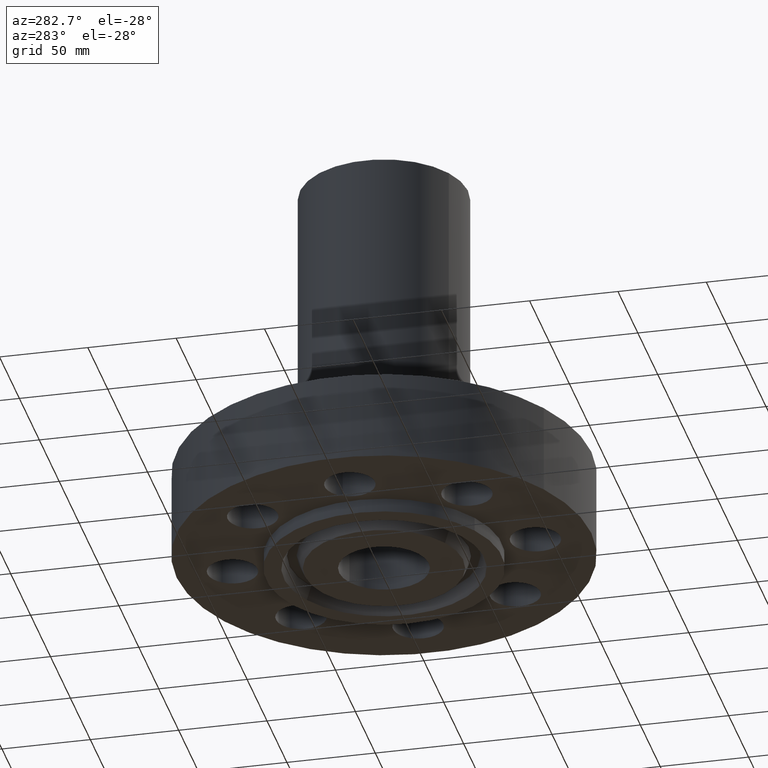
[diagram: clean part render]
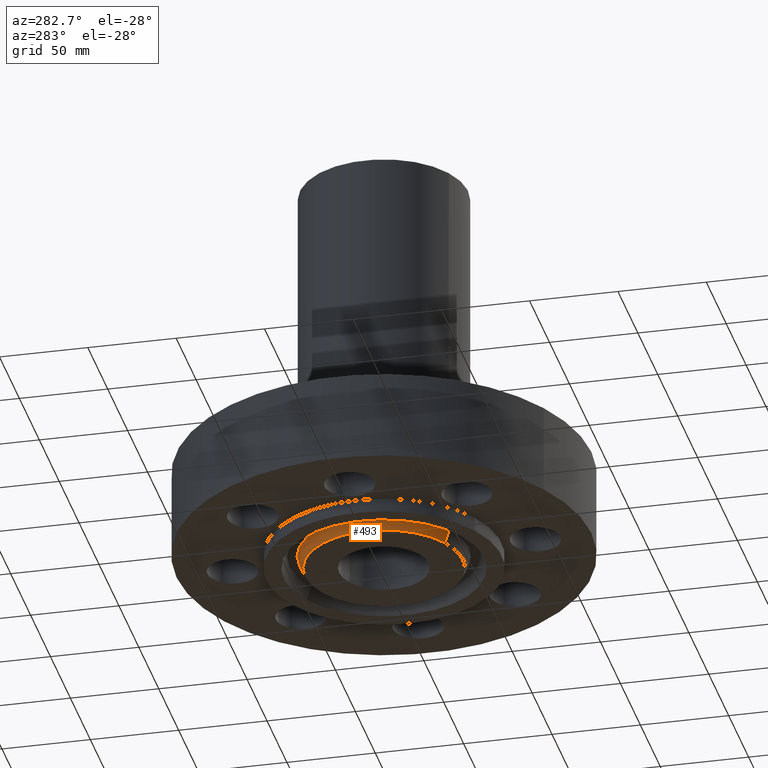
[diagram: same view with one face highlighted and labeled with its STEP entity id]
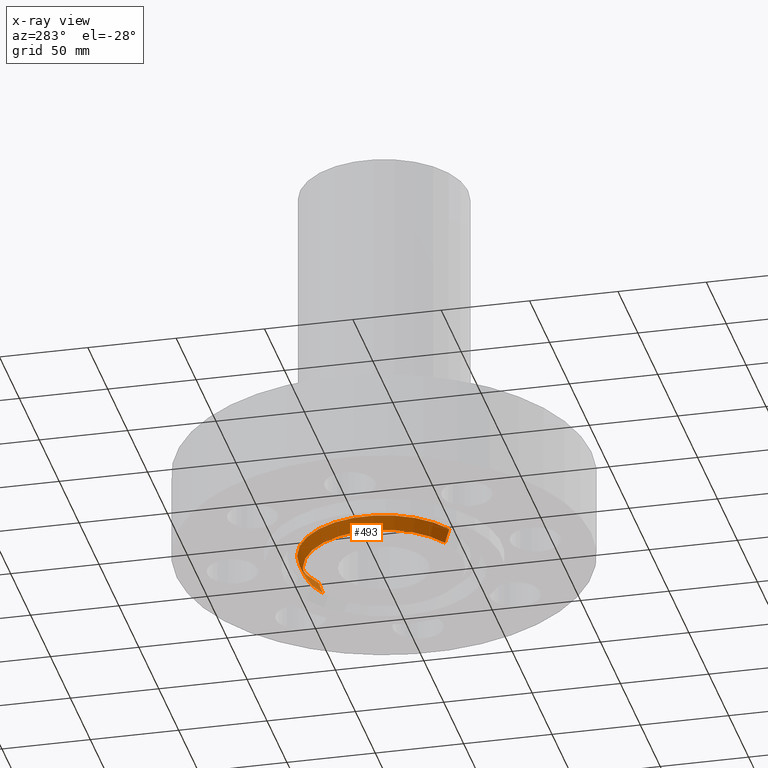
[diagram: x-ray of the same camera — body ghosted, the highlighted face saturated]
A machine part, auxiliary view. The second image highlights one B-rep face of the part: STEP entity #493.
The next image is the same camera in x-ray: the body ghosted, the highlighted face saturated — about 0% of this face is hidden behind the body in this view.
In plain terms, the highlighted conical surface has half-angle 23 deg.
Its self-contained STEP definition (entity closure, byte-faithful):
#442=AXIS2_PLACEMENT_3D('Circle Axis2P3D',#440,#441,$) ;
#466=AXIS2_PLACEMENT_3D('Cone Axis2P3D',#463,#464,#465) ;
#477=AXIS2_PLACEMENT_3D('Circle Axis2P3D',#475,#476,$) ;
#440=CARTESIAN_POINT('Axis2P3D Location',(0.,0.,-0.313000000001)) ;
#444=CARTESIAN_POINT('Vertex',(-0.846425788409,-1.54937201302,-0.313000000001)) ;
#446=CARTESIAN_POINT('Vertex',(0.846425788409,1.54937201302,-0.313000000001)) ;
#463=CARTESIAN_POINT('Axis2P3D Location',(0.,0.,-0.313000000001)) ;
#468=CARTESIAN_POINT('Line Origine',(-0.876352350206,-1.60415221695,-0.165943667509)) ;
#472=CARTESIAN_POINT('Vertex',(-0.906278912003,-1.65893242087,-0.0188873350169)) ;
#475=CARTESIAN_POINT('Axis2P3D Location',(0.,0.,-0.0188873350169)) ;
#479=CARTESIAN_POINT('Vertex',(0.906278912003,1.65893242087,-0.0188873350169)) ;
#482=CARTESIAN_POINT('Line Origine',(0.876352350206,1.60415221695,-0.165943667509)) ;
#441=DIRECTION('Axis2P3D Direction',(0.,0.,-0.0393700787402)) ;
#464=DIRECTION('Axis2P3D Direction',(-0.,-0.,0.0393700787402)) ;
#465=DIRECTION('Axis2P3D XDirection',(-0.0188750212049,-0.0345504945626,0.)) ;
#469=DIRECTION('Vector Direction',(-0.00737505833565,-0.0134999537303,0.0362403485611)) ;
#476=DIRECTION('Axis2P3D Direction',(-0.,0.,0.0393700787402)) ;
#483=DIRECTION('Vector Direction',(0.00737505833565,0.0134999537303,0.0362403485611)) ;
#470=VECTOR('Line Direction',#469,0.0393700787402) ;
#484=VECTOR('Line Direction',#483,0.0393700787402) ;
#488=ORIENTED_EDGE('',*,*,#448,.F.) ;
#489=ORIENTED_EDGE('',*,*,#474,.T.) ;
#490=ORIENTED_EDGE('',*,*,#481,.T.) ;
#491=ORIENTED_EDGE('',*,*,#486,.F.) ;
#493=ADVANCED_FACE('PartBody',(#492),#467,.T.) ;
#443=CIRCLE('generated circle',#442,1.76550000001) ;
#478=CIRCLE('generated circle',#477,1.89034341942) ;
#467=CONICAL_SURFACE('Cone',#466,1.76550000001,0.401425727959) ;
#448=EDGE_CURVE('',#445,#447,#443,.T.) ;
#474=EDGE_CURVE('',#445,#473,#471,.T.) ;
#481=EDGE_CURVE('',#473,#480,#478,.F.) ;
#486=EDGE_CURVE('',#447,#480,#485,.T.) ;
#487=EDGE_LOOP('',(#488,#489,#490,#491)) ;
#492=FACE_OUTER_BOUND('',#487,.T.) ;
#471=LINE('Line',#468,#470) ;
#485=LINE('Line',#482,#484) ;
#445=VERTEX_POINT('',#444) ;
#447=VERTEX_POINT('',#446) ;
#473=VERTEX_POINT('',#472) ;
#480=VERTEX_POINT('',#479) ;